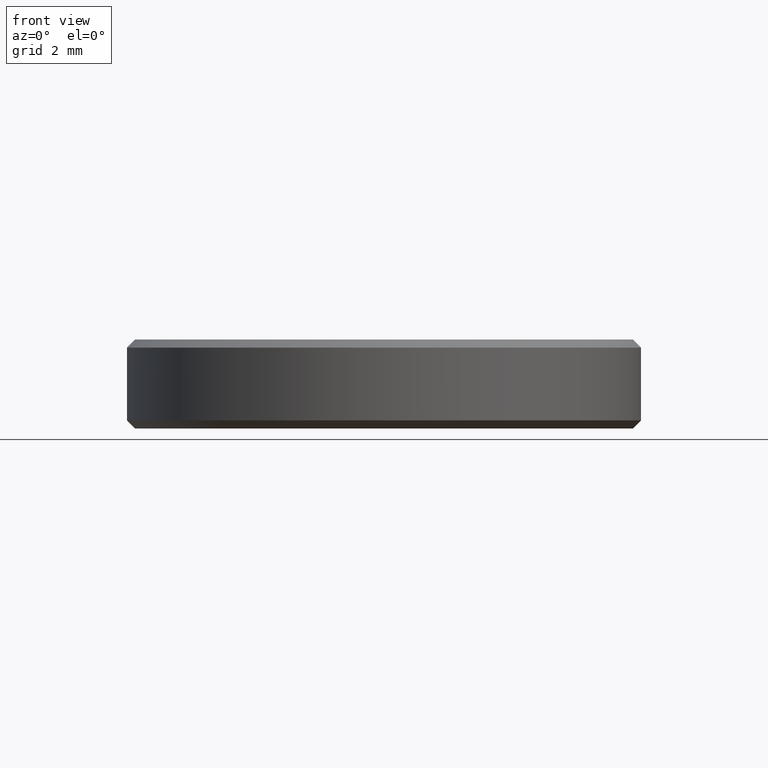
[diagram: clean part render]
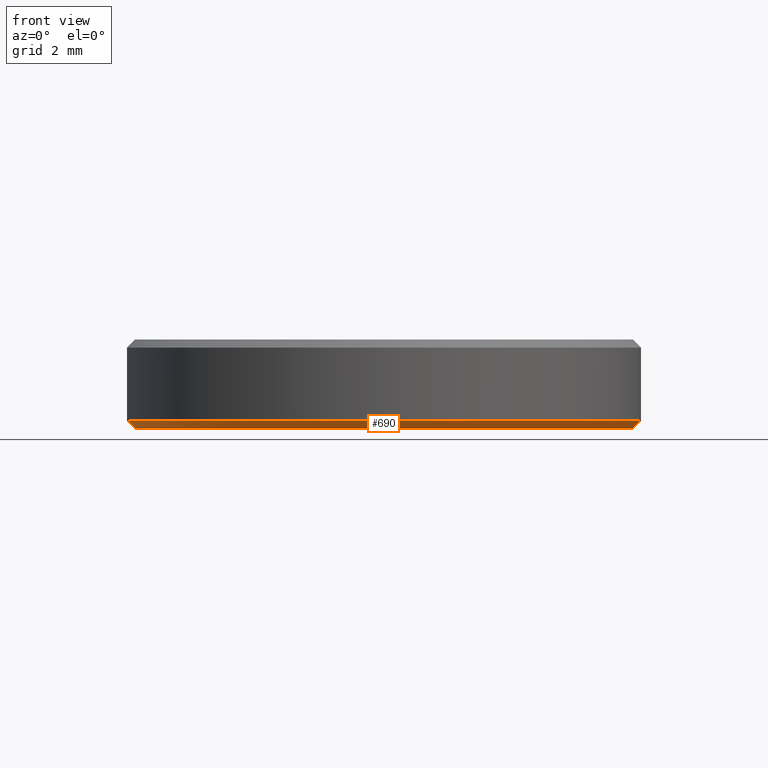
[diagram: same view with one face highlighted and labeled with its STEP entity id]
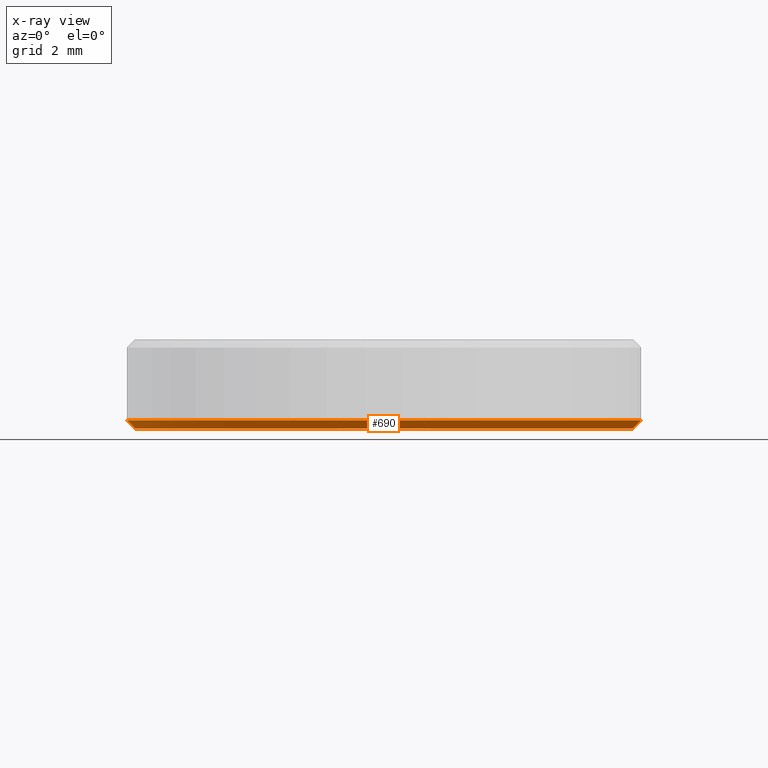
[diagram: x-ray of the same camera — body ghosted, the highlighted face saturated]
A machine part, front view. The second image highlights one B-rep face of the part: STEP entity #690.
The next image is the same camera in x-ray: the body ghosted, the highlighted face saturated — about 0% of this face is hidden behind the body in this view.
In plain terms, the highlighted conical surface has half-angle 45 deg.
Its self-contained STEP definition (entity closure, byte-faithful):
#28 = DIRECTION ( 'NONE',  ( -0.7071067811865490160, 8.659560562354953812E-17, 0.7071067811865460184 ) ) ;
#29 = VERTEX_POINT ( 'NONE', #142 ) ;
#57 = CARTESIAN_POINT ( 'NONE',  ( 6.349999999999999645, 0.000000000000000000, 0.1999999999999987899 ) ) ;
#64 = LINE ( 'NONE', #57, #298 ) ;
#72 = ORIENTED_EDGE ( 'NONE', *, *, #261, .F. ) ;
#85 = CARTESIAN_POINT ( 'NONE',  ( 0.000000000000000000, 0.000000000000000000, 0.000000000000000000 ) ) ;
#133 = DIRECTION ( 'NONE',  ( 1.000000000000000000, 0.000000000000000000, 0.000000000000000000 ) ) ;
#142 = CARTESIAN_POINT ( 'NONE',  ( -6.150000000000000355, 7.654042494670957606E-16, 0.000000000000000000 ) ) ;
#155 = VERTEX_POINT ( 'NONE', #277 ) ;
#158 = AXIS2_PLACEMENT_3D ( 'NONE', #182, #410, #133 ) ;
#161 = DIRECTION ( 'NONE',  ( -0.000000000000000000, -0.000000000000000000, 1.000000000000000000 ) ) ;
#164 = CARTESIAN_POINT ( 'NONE',  ( 0.000000000000000000, 0.000000000000000000, 0.1999999999999987899 ) ) ;
#181 = AXIS2_PLACEMENT_3D ( 'NONE', #164, #161, #330 ) ;
#182 = CARTESIAN_POINT ( 'NONE',  ( 0.000000000000000000, 0.000000000000000000, 0.1999999999999987899 ) ) ;
#190 = EDGE_CURVE ( 'NONE', #220, #378, #64, .T. ) ;
#220 = VERTEX_POINT ( 'NONE', #232 ) ;
#232 = CARTESIAN_POINT ( 'NONE',  ( 6.150000000000000355, 0.000000000000000000, 0.000000000000000000 ) ) ;
#261 = EDGE_CURVE ( 'NONE', #29, #155, #511, .T. ) ;
#277 = CARTESIAN_POINT ( 'NONE',  ( -6.349999999999999645, 0.000000000000000000, 0.1999999999999987899 ) ) ;
#294 = ORIENTED_EDGE ( 'NONE', *, *, #190, .T. ) ;
#298 = VECTOR ( 'NONE', #389, 1000.000000000000114 ) ;
#305 = EDGE_CURVE ( 'NONE', #155, #378, #368, .T. ) ;
#330 = DIRECTION ( 'NONE',  ( 1.000000000000000000, 0.000000000000000000, 0.000000000000000000 ) ) ;
#368 = CIRCLE ( 'NONE', #158, 6.349999999999999645 ) ;
#369 = DIRECTION ( 'NONE',  ( 1.000000000000000000, 0.000000000000000000, 0.000000000000000000 ) ) ;
#378 = VERTEX_POINT ( 'NONE', #527 ) ;
#389 = DIRECTION ( 'NONE',  ( 0.7071067811865490160, 0.000000000000000000, 0.7071067811865460184 ) ) ;
#410 = DIRECTION ( 'NONE',  ( -0.000000000000000000, -0.000000000000000000, 1.000000000000000000 ) ) ;
#490 = CONICAL_SURFACE ( 'NONE', #181, 6.349999999999999645, 0.7853981633974504994 ) ;
#501 = CARTESIAN_POINT ( 'NONE',  ( -6.349999999999999645, 7.776507174585692163E-16, 0.1999999999999987899 ) ) ;
#511 = LINE ( 'NONE', #501, #579 ) ;
#513 = EDGE_CURVE ( 'NONE', #220, #29, #642, .T. ) ;
#518 = DIRECTION ( 'NONE',  ( -0.000000000000000000, -0.000000000000000000, -1.000000000000000000 ) ) ;
#519 = ORIENTED_EDGE ( 'NONE', *, *, #513, .F. ) ;
#527 = CARTESIAN_POINT ( 'NONE',  ( 6.349999999999999645, 7.776507174585692163E-16, 0.1999999999999987899 ) ) ;
#532 = AXIS2_PLACEMENT_3D ( 'NONE', #85, #518, #369 ) ;
#579 = VECTOR ( 'NONE', #28, 1000.000000000000114 ) ;
#589 = ORIENTED_EDGE ( 'NONE', *, *, #305, .F. ) ;
#613 = EDGE_LOOP ( 'NONE', ( #72, #519, #294, #589 ) ) ;
#642 = CIRCLE ( 'NONE', #532, 6.150000000000000355 ) ;
#659 = FACE_OUTER_BOUND ( 'NONE', #613, .T. ) ;
#690 = ADVANCED_FACE ( 'NONE', ( #659 ), #490, .T. ) ;